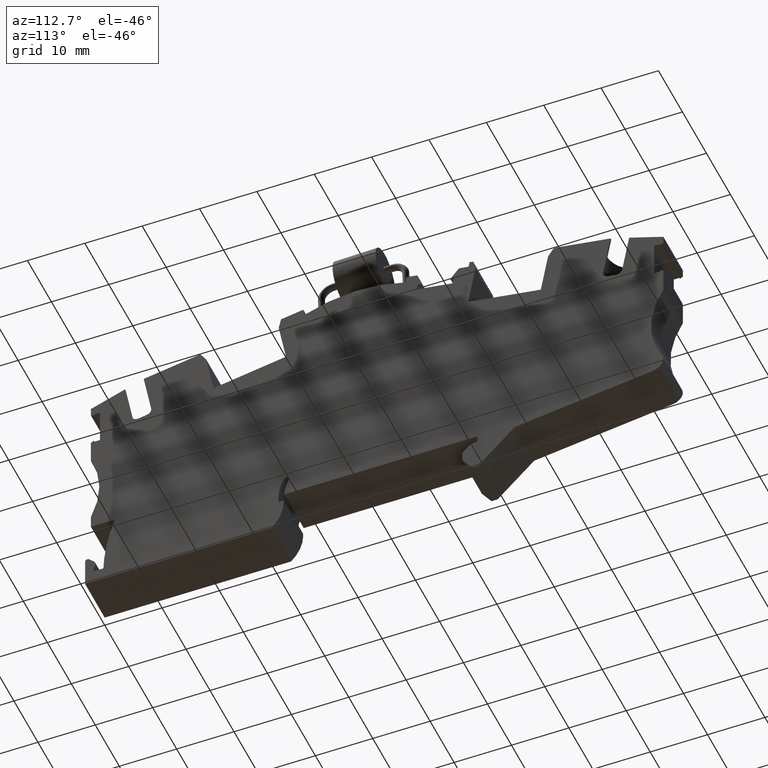
[diagram: clean part render]
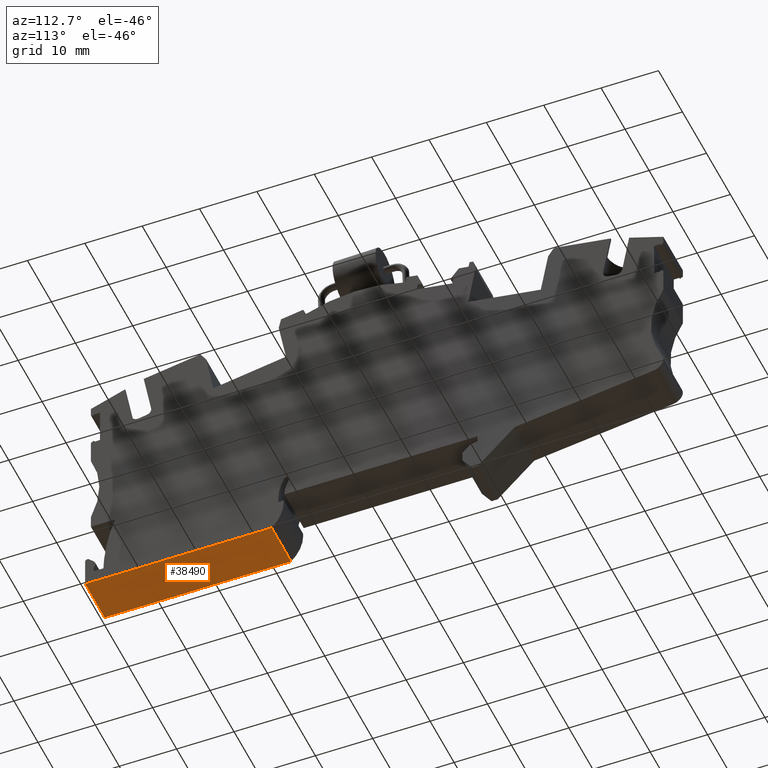
[diagram: same view with one face highlighted and labeled with its STEP entity id]
A machine part, auxiliary view. The second image highlights one B-rep face of the part: STEP entity #38490.
In plain terms, the highlighted planar face has unit normal (0, -0, -1).
Its self-contained STEP definition (entity closure, byte-faithful):
#6500=CARTESIAN_POINT('',(-23.1703368668329,48.1084053680072,
-53.6700000038073));
#6510=VERTEX_POINT('',#6500);
#6540=CARTESIAN_POINT('',(-1.08662874254151E-8,52.1939609078931,
-53.670000009395));
#6550=DIRECTION('',(0.984807753011661,0.173648177670031,
-2.37495981214586E-10));
#6560=VECTOR('',#6550,1.);
#6570=LINE('',#6540,#6560);
#6580=CARTESIAN_POINT('',(-55.1820743443006,42.4638723512697,
-53.6699999960873));
#6590=VERTEX_POINT('',#6580);
#6600=EDGE_CURVE('',#6590,#6510,#6570,.T.);
#7990=CARTESIAN_POINT('',(-55.1820743442994,42.4638723512699,
-45.5199999977884));
#8000=VERTEX_POINT('',#7990);
#8030=CARTESIAN_POINT('',(-1.08662874254151E-8,52.1939609078932,
-45.5200000117012));
#8040=DIRECTION('',(-0.984807753011661,-0.173648177670031,
2.48295398130871E-10));
#8050=VECTOR('',#8040,1.);
#8060=LINE('',#8030,#8050);
#8070=CARTESIAN_POINT('',(-23.1703368649268,48.1084053683434,
-45.5200000058593));
#8080=VERTEX_POINT('',#8070);
#8090=EDGE_CURVE('',#8080,#8000,#8060,.T.);
#38280=CARTESIAN_POINT('',(-45.6791494162792,44.1394944117576,
-45.5200000068817));
#38290=DIRECTION('',(-0.173648177670031,0.984807753011661,
-1.22307464982819E-14));
#38300=DIRECTION('',(0.984807753011662,0.173648177670031,
-1.52700654148542E-13));
#38310=AXIS2_PLACEMENT_3D('',#38280,#38290,#38300);
#38320=PLANE('',#38310);
#38330=ORIENTED_EDGE('',*,*,#8090,.F.);
#38340=CARTESIAN_POINT('',(-55.1820743442926,42.4638723512715,
-7.22589277302177E-9));
#38350=DIRECTION('',(1.48256941254465E-13,3.8561124298544E-14,1.));
#38360=VECTOR('',#38350,1.);
#38370=LINE('',#38340,#38360);
#38380=EDGE_CURVE('',#6590,#8000,#38370,.T.);
#38390=ORIENTED_EDGE('',*,*,#38380,.T.);
#38400=ORIENTED_EDGE('',*,*,#6600,.F.);
#38410=CARTESIAN_POINT('',(-23.1703368668329,48.1084053680072,
-53.6700000038073));
#38420=DIRECTION('',(-2.33885807603283E-10,-4.12525722414922E-11,-1.));
#38430=VECTOR('',#38420,1.);
#38440=LINE('',#38410,#38430);
#38450=EDGE_CURVE('',#8080,#6510,#38440,.T.);
#38460=ORIENTED_EDGE('',*,*,#38450,.T.);
#38470=EDGE_LOOP('',(#38460,#38400,#38390,#38330));
#38480=FACE_OUTER_BOUND('',#38470,.T.);
#38490=ADVANCED_FACE('',(#38480),#38320,.T.);